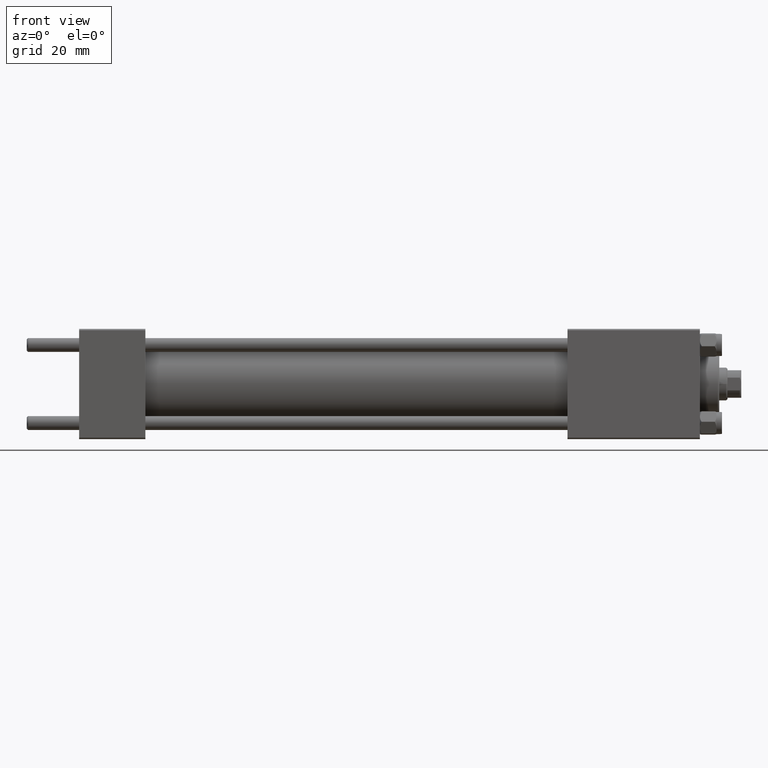
[diagram: clean part render]
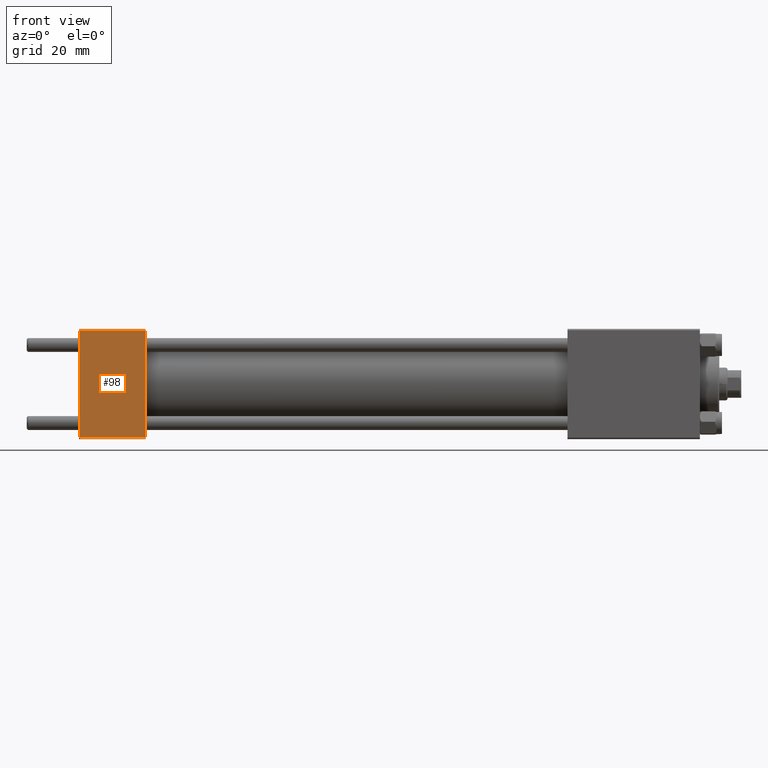
[diagram: same view with one face highlighted and labeled with its STEP entity id]
A machine part, front view. The second image highlights one B-rep face of the part: STEP entity #98.
In plain terms, the highlighted planar face has unit normal (0, 1, 0).
Its self-contained STEP definition (entity closure, byte-faithful):
#98 = ADVANCED_FACE ( 'NONE', ( #12798 ), #43578, .F. ) ;
#4132 = CARTESIAN_POINT ( 'NONE',  ( 24.00000000000000000, -20.00000000000000355, 19.49999999999998224 ) ) ;
#4413 = CARTESIAN_POINT ( 'NONE',  ( 0.000000000000000000, -20.00000000000000000, -19.49999999999999645 ) ) ;
#5117 = CARTESIAN_POINT ( 'NONE',  ( 0.000000000000000000, -20.00000000000000355, 19.49999999999998224 ) ) ;
#5710 = CARTESIAN_POINT ( 'NONE',  ( 24.00000000000000000, -20.00000000000000000, -19.49999999999999645 ) ) ;
#6386 = VECTOR ( 'NONE', #34738, 1000.000000000000000 ) ;
#7201 = EDGE_LOOP ( 'NONE', ( #10833, #45130, #12888, #24232 ) ) ;
#7457 = CARTESIAN_POINT ( 'NONE',  ( 24.00000000000000000, -20.00000000000000355, 19.49999999999998224 ) ) ;
#8066 = VERTEX_POINT ( 'NONE', #5710 ) ;
#9108 = CARTESIAN_POINT ( 'NONE',  ( 24.00000000000000000, -20.00000000000000000, -19.49999999999999645 ) ) ;
#10833 = ORIENTED_EDGE ( 'NONE', *, *, #25327, .T. ) ;
#11091 = VECTOR ( 'NONE', #45944, 1000.000000000000000 ) ;
#12798 = FACE_OUTER_BOUND ( 'NONE', #7201, .T. ) ;
#12888 = ORIENTED_EDGE ( 'NONE', *, *, #28921, .F. ) ;
#13192 = VERTEX_POINT ( 'NONE', #5117 ) ;
#16077 = CARTESIAN_POINT ( 'NONE',  ( 24.00000000000000000, -20.00000000000000355, 19.99999999999998934 ) ) ;
#19355 = LINE ( 'NONE', #49634, #6386 ) ;
#20443 = EDGE_CURVE ( 'NONE', #40698, #8066, #23731, .T. ) ;
#23731 = LINE ( 'NONE', #9108, #47184 ) ;
#24231 = AXIS2_PLACEMENT_3D ( 'NONE', #16077, #47100, #24398 ) ;
#24232 = ORIENTED_EDGE ( 'NONE', *, *, #44316, .T. ) ;
#24398 = DIRECTION ( 'NONE',  ( 0.000000000000000000, -8.673617379884036705E-17, 1.000000000000000000 ) ) ;
#24560 = VECTOR ( 'NONE', #43280, 1000.000000000000000 ) ;
#24748 = DIRECTION ( 'NONE',  ( 1.000000000000000000, 0.000000000000000000, 0.000000000000000000 ) ) ;
#25327 = EDGE_CURVE ( 'NONE', #13192, #40698, #29833, .T. ) ;
#25957 = VERTEX_POINT ( 'NONE', #7457 ) ;
#28921 = EDGE_CURVE ( 'NONE', #25957, #8066, #19355, .T. ) ;
#29833 = LINE ( 'NONE', #45212, #11091 ) ;
#34738 = DIRECTION ( 'NONE',  ( 0.000000000000000000, 8.673617379884036705E-17, -1.000000000000000000 ) ) ;
#40698 = VERTEX_POINT ( 'NONE', #4413 ) ;
#43017 = LINE ( 'NONE', #4132, #24560 ) ;
#43280 = DIRECTION ( 'NONE',  ( -1.000000000000000000, 0.000000000000000000, 0.000000000000000000 ) ) ;
#43578 = PLANE ( 'NONE',  #24231 ) ;
#44316 = EDGE_CURVE ( 'NONE', #25957, #13192, #43017, .T. ) ;
#45130 = ORIENTED_EDGE ( 'NONE', *, *, #20443, .T. ) ;
#45212 = CARTESIAN_POINT ( 'NONE',  ( 0.000000000000000000, -20.00000000000000355, 19.99999999999998934 ) ) ;
#45944 = DIRECTION ( 'NONE',  ( 0.000000000000000000, 8.673617379884036705E-17, -1.000000000000000000 ) ) ;
#47100 = DIRECTION ( 'NONE',  ( -0.000000000000000000, 1.000000000000000000, 8.673617379884036705E-17 ) ) ;
#47184 = VECTOR ( 'NONE', #24748, 1000.000000000000000 ) ;
#49634 = CARTESIAN_POINT ( 'NONE',  ( 24.00000000000000000, -20.00000000000000355, 19.99999999999998934 ) ) ;